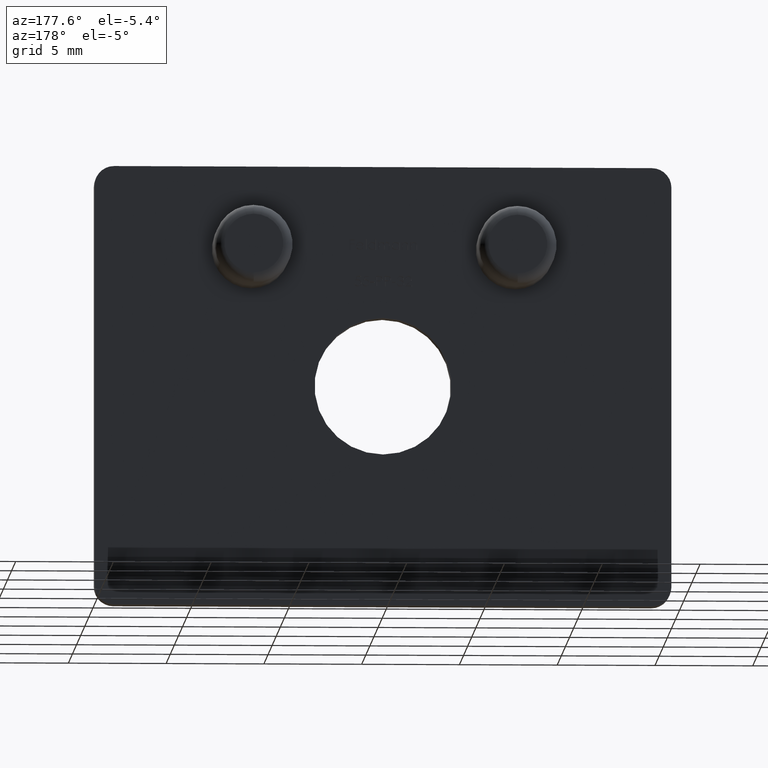
[diagram: clean part render]
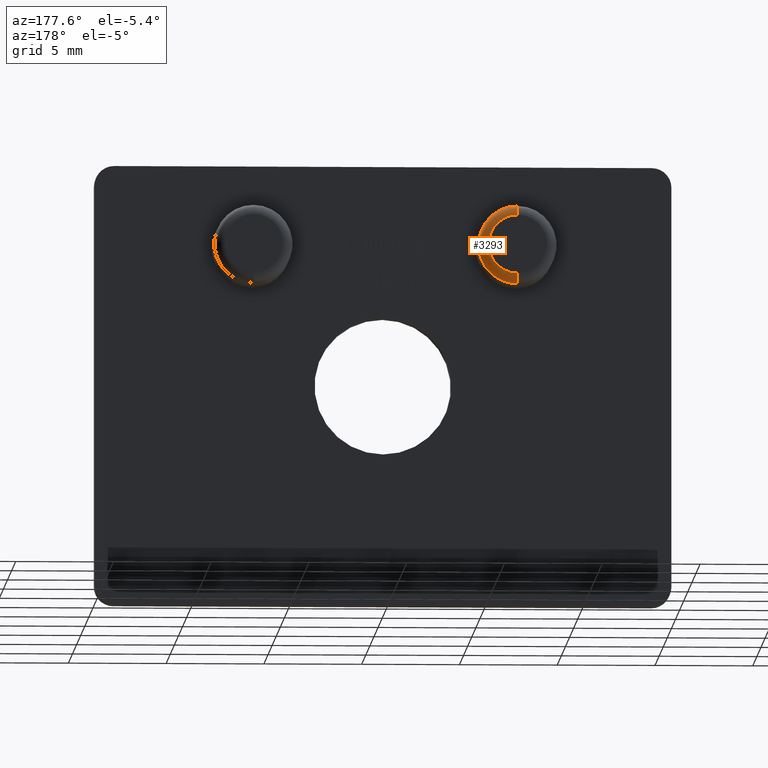
[diagram: same view with one face highlighted and labeled with its STEP entity id]
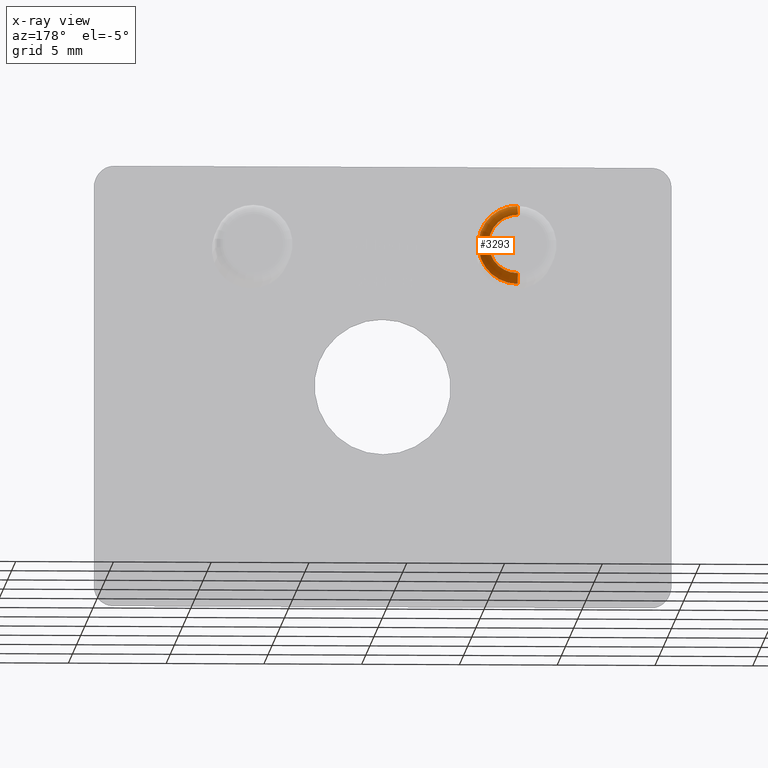
[diagram: x-ray of the same camera — body ghosted, the highlighted face saturated]
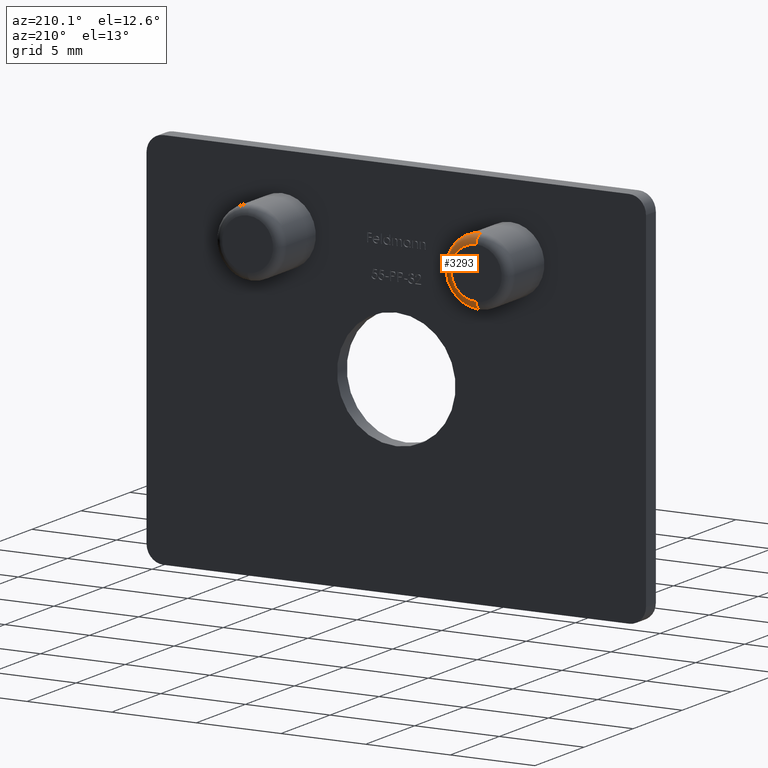
[diagram: same view with one face highlighted and labeled with its STEP entity id]
A machine part, auxiliary view. The second image highlights one B-rep face of the part: STEP entity #3293.
The next image is the same camera in x-ray: the body ghosted, the highlighted face saturated — about 0% of this face is hidden behind the body in this view.
A second angle (auxiliary view) of the same face is appended — the face is thin or edge-on in the first view.
In plain terms, the highlighted toroidal blend (fillet) surface has major radius 1.5 mm and minor (blend) radius 0.5 mm.
Its self-contained STEP definition (entity closure, byte-faithful):
#262 = CIRCLE ( 'NONE', #6179, 2.000000000000001800 ) ;
#290 = FACE_OUTER_BOUND ( 'NONE', #6183, .T. ) ;
#1149 = VERTEX_POINT ( 'NONE', #11472 ) ;
#1531 = CARTESIAN_POINT ( 'NONE',  ( -6.749999999999997300, 4.000000000000000000, 5.500000000000000000 ) ) ;
#1607 = DIRECTION ( 'NONE',  ( -1.000000000000000000, 0.0000000000000000000, 0.0000000000000000000 ) ) ;
#1913 = CIRCLE ( 'NONE', #2970, 1.500000000000001300 ) ;
#1971 = DIRECTION ( 'NONE',  ( -0.0000000000000000000, -1.000000000000000000, 0.0000000000000000000 ) ) ;
#2721 = EDGE_CURVE ( 'NONE', #10271, #1149, #10414, .T. ) ;
#2865 = DIRECTION ( 'NONE',  ( 0.0000000000000000000, 0.0000000000000000000, -1.000000000000000000 ) ) ;
#2907 = DIRECTION ( 'NONE',  ( 0.0000000000000000000, 1.000000000000000000, -0.0000000000000000000 ) ) ;
#2970 = AXIS2_PLACEMENT_3D ( 'NONE', #7733, #2907, #2865 ) ;
#3076 = VERTEX_POINT ( 'NONE', #5200 ) ;
#3293 = ADVANCED_FACE ( 'NONE', ( #290 ), #10267, .T. ) ;
#3739 = EDGE_CURVE ( 'NONE', #11021, #10271, #1913, .T. ) ;
#4022 = ORIENTED_EDGE ( 'NONE', *, *, #4541, .F. ) ;
#4541 = EDGE_CURVE ( 'NONE', #1149, #3076, #262, .T. ) ;
#4799 = CARTESIAN_POINT ( 'NONE',  ( -6.749999999999997300, 4.000000000000000000, 8.500000000000001800 ) ) ;
#5200 = CARTESIAN_POINT ( 'NONE',  ( -6.749999999999997300, 4.000000000000000000, 9.000000000000003600 ) ) ;
#6179 = AXIS2_PLACEMENT_3D ( 'NONE', #10662, #1971, #8634 ) ;
#6183 = EDGE_LOOP ( 'NONE', ( #7343, #10202, #4022, #11342 ) ) ;
#6202 = CARTESIAN_POINT ( 'NONE',  ( -6.749999999999997300, 4.500000000000000900, 8.500000000000001800 ) ) ;
#6262 = DIRECTION ( 'NONE',  ( 0.0000000000000000000, 0.0000000000000000000, 1.000000000000000000 ) ) ;
#7343 = ORIENTED_EDGE ( 'NONE', *, *, #3739, .F. ) ;
#7397 = AXIS2_PLACEMENT_3D ( 'NONE', #4799, #9688, #11444 ) ;
#7647 = CIRCLE ( 'NONE', #7397, 0.5000000000000004400 ) ;
#7733 = CARTESIAN_POINT ( 'NONE',  ( -6.749999999999997300, 4.500000000000000900, 7.000000000000000900 ) ) ;
#7763 = DIRECTION ( 'NONE',  ( 0.0000000000000000000, 0.0000000000000000000, -1.000000000000000000 ) ) ;
#8634 = DIRECTION ( 'NONE',  ( 0.0000000000000000000, 0.0000000000000000000, -1.000000000000000000 ) ) ;
#9254 = AXIS2_PLACEMENT_3D ( 'NONE', #1531, #1607, #6262 ) ;
#9660 = EDGE_CURVE ( 'NONE', #11021, #3076, #7647, .T. ) ;
#9688 = DIRECTION ( 'NONE',  ( 1.000000000000000000, -0.0000000000000000000, -1.224646799147353200E-016 ) ) ;
#9713 = DIRECTION ( 'NONE',  ( -0.0000000000000000000, -1.000000000000000000, 0.0000000000000000000 ) ) ;
#9753 = AXIS2_PLACEMENT_3D ( 'NONE', #10560, #9713, #7763 ) ;
#10202 = ORIENTED_EDGE ( 'NONE', *, *, #9660, .T. ) ;
#10267 = TOROIDAL_SURFACE ( 'NONE', #9753, 1.500000000000001300, 0.5000000000000000000 ) ;
#10271 = VERTEX_POINT ( 'NONE', #11006 ) ;
#10414 = CIRCLE ( 'NONE', #9254, 0.5000000000000004400 ) ;
#10560 = CARTESIAN_POINT ( 'NONE',  ( -6.749999999999997300, 4.000000000000000000, 7.000000000000000900 ) ) ;
#10662 = CARTESIAN_POINT ( 'NONE',  ( -6.749999999999997300, 4.000000000000000000, 7.000000000000000900 ) ) ;
#11006 = CARTESIAN_POINT ( 'NONE',  ( -6.749999999999997300, 4.500000000000000900, 5.500000000000000000 ) ) ;
#11021 = VERTEX_POINT ( 'NONE', #6202 ) ;
#11342 = ORIENTED_EDGE ( 'NONE', *, *, #2721, .F. ) ;
#11444 = DIRECTION ( 'NONE',  ( 0.0000000000000000000, 0.0000000000000000000, -1.000000000000000000 ) ) ;
#11472 = CARTESIAN_POINT ( 'NONE',  ( -6.749999999999997300, 4.000000000000000000, 4.999999999999999100 ) ) ;